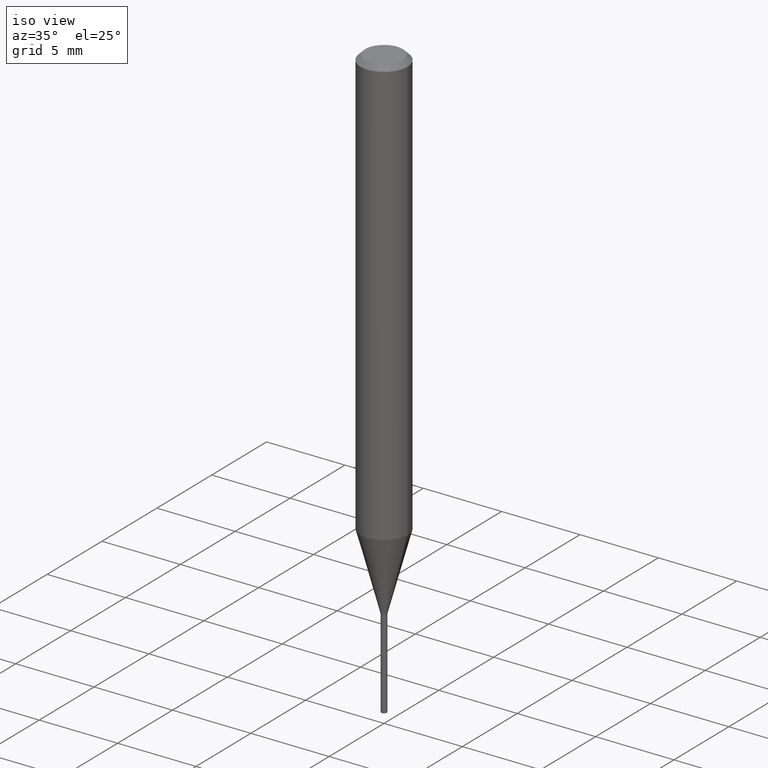
[diagram: clean part render]
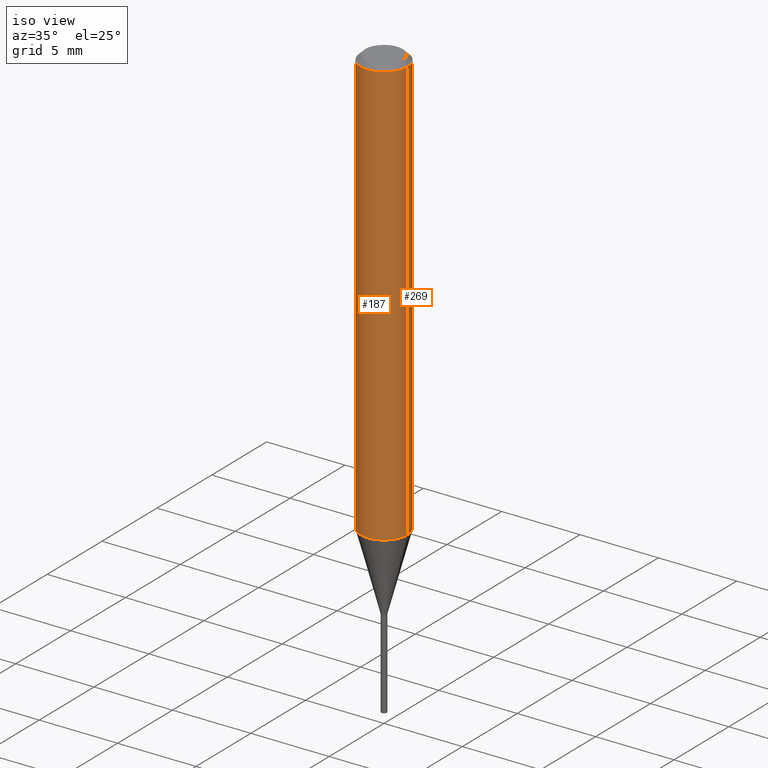
[diagram: same view with one multi-face feature highlighted, each face labeled with its STEP entity id]
A machine part, iso view. The highlighted faces form ONE feature: a constant-radius fillet chain: 2 tangent blend faces with common blend radius 1.4999 mm. The faces share edges in the B-rep.
Their STEP definitions:
[1] entity #187 (Cylinder):
#36 = CIRCLE ( 'NONE', #205, 0.05904999999999999832 ) ;
#45 = ORIENTED_EDGE ( 'NONE', *, *, #321, .F. ) ;
#54 = CARTESIAN_POINT ( 'NONE',  ( -0.05905000000000013710, -3.333674605453837154E-15, -1.074973550385283083 ) ) ;
#55 = ORIENTED_EDGE ( 'NONE', *, *, #144, .T. ) ;
#59 = DIRECTION ( 'NONE',  ( -2.445468806185136597E-29, 3.491481338843145583E-15, 1.000000000000000000 ) ) ;
#66 = EDGE_CURVE ( 'NONE', #312, #297, #173, .T. ) ;
#68 = LINE ( 'NONE', #236, #125 ) ;
#82 = DIRECTION ( 'NONE',  ( 1.000000000000000000, -6.982962677686266711E-15, 4.876176775795936353E-29 ) ) ;
#103 = CARTESIAN_POINT ( 'NONE',  ( 0.05905000000000013710, -4.165594037037551961E-15, -1.074973550385283083 ) ) ;
#125 = VECTOR ( 'NONE', #228, 39.37007874015748143 ) ;
#126 = DIRECTION ( 'NONE',  ( 1.000000000000000000, -6.982962677686264344E-15, 0.000000000000000000 ) ) ;
#136 = CARTESIAN_POINT ( 'NONE',  ( 0.05905000000000006771, -4.123439461173745257E-16, 2.879382386107503723E-30 ) ) ;
#144 = EDGE_CURVE ( 'NONE', #271, #312, #270, .T. ) ;
#162 = FACE_OUTER_BOUND ( 'NONE', #197, .T. ) ;
#173 = LINE ( 'NONE', #136, #223 ) ;
#187 = ADVANCED_FACE ( 'NONE', ( #162 ), #382, .T. ) ;
#197 = EDGE_LOOP ( 'NONE', ( #476, #55, #238, #45 ) ) ;
#204 = CARTESIAN_POINT ( 'NONE',  ( 0.000000000000000000, 0.000000000000000000, 0.000000000000000000 ) ) ;
#205 = AXIS2_PLACEMENT_3D ( 'NONE', #259, #59, #356 ) ;
#207 = DIRECTION ( 'NONE',  ( -2.445468806185136597E-29, 3.491481338843145583E-15, 1.000000000000000000 ) ) ;
#216 = CARTESIAN_POINT ( 'NONE',  ( 0.05904999999999999832, -4.535783407291118600E-16, -0.01181000000000007044 ) ) ;
#223 = VECTOR ( 'NONE', #319, 39.37007874015748143 ) ;
#228 = DIRECTION ( 'NONE',  ( -2.445468806185136877E-29, 3.491481338843145188E-15, 1.000000000000000000 ) ) ;
#236 = CARTESIAN_POINT ( 'NONE',  ( -0.05905000000000006771, 4.195754854663396409E-16, -2.904631170795525045E-30 ) ) ;
#238 = ORIENTED_EDGE ( 'NONE', *, *, #66, .T. ) ;
#245 = VERTEX_POINT ( 'NONE', #292 ) ;
#259 = CARTESIAN_POINT ( 'NONE',  ( 2.888098660104663766E-31, -4.123439461173779647E-17, -0.01181000000000007044 ) ) ;
#270 = CIRCLE ( 'NONE', #478, 0.05905000000000013710 ) ;
#271 = VERTEX_POINT ( 'NONE', #54 ) ;
#275 = DIRECTION ( 'NONE',  ( -2.445468806185136597E-29, 3.491481338843145583E-15, 1.000000000000000000 ) ) ;
#283 = CARTESIAN_POINT ( 'NONE',  ( 2.628814284941295656E-29, -3.753250090920177830E-15, -1.074973550385283083 ) ) ;
#292 = CARTESIAN_POINT ( 'NONE',  ( -0.05904999999999999832, -1.477666757299617300E-15, -0.01181000000000007044 ) ) ;
#297 = VERTEX_POINT ( 'NONE', #216 ) ;
#312 = VERTEX_POINT ( 'NONE', #103 ) ;
#319 = DIRECTION ( 'NONE',  ( -2.445468806185136877E-29, 3.491481338843145188E-15, 1.000000000000000000 ) ) ;
#321 = EDGE_CURVE ( 'NONE', #245, #297, #36, .T. ) ;
#356 = DIRECTION ( 'NONE',  ( 1.000000000000000000, -6.982962677686266711E-15, 0.000000000000000000 ) ) ;
#370 = AXIS2_PLACEMENT_3D ( 'NONE', #204, #207, #82 ) ;
#382 = CYLINDRICAL_SURFACE ( 'NONE', #370, 0.05905000000000006771 ) ;
#427 = EDGE_CURVE ( 'NONE', #271, #245, #68, .T. ) ;
#476 = ORIENTED_EDGE ( 'NONE', *, *, #427, .F. ) ;
#478 = AXIS2_PLACEMENT_3D ( 'NONE', #283, #275, #126 ) ;
[2] entity #269 (Cylinder):
#12 = AXIS2_PLACEMENT_3D ( 'NONE', #101, #399, #145 ) ;
#18 = ORIENTED_EDGE ( 'NONE', *, *, #427, .T. ) ;
#19 = DIRECTION ( 'NONE',  ( 1.000000000000000000, -6.982962677686264344E-15, 0.000000000000000000 ) ) ;
#28 = ORIENTED_EDGE ( 'NONE', *, *, #66, .F. ) ;
#31 = EDGE_CURVE ( 'NONE', #312, #271, #158, .T. ) ;
#49 = CARTESIAN_POINT ( 'NONE',  ( 2.888098660104663766E-31, -4.123439461173779647E-17, -0.01181000000000007044 ) ) ;
#54 = CARTESIAN_POINT ( 'NONE',  ( -0.05905000000000013710, -3.333674605453837154E-15, -1.074973550385283083 ) ) ;
#66 = EDGE_CURVE ( 'NONE', #312, #297, #173, .T. ) ;
#68 = LINE ( 'NONE', #236, #125 ) ;
#76 = ORIENTED_EDGE ( 'NONE', *, *, #31, .T. ) ;
#78 = EDGE_CURVE ( 'NONE', #297, #245, #405, .T. ) ;
#97 = CYLINDRICAL_SURFACE ( 'NONE', #12, 0.05905000000000006771 ) ;
#98 = DIRECTION ( 'NONE',  ( -2.445468806185136597E-29, 3.491481338843145583E-15, 1.000000000000000000 ) ) ;
#101 = CARTESIAN_POINT ( 'NONE',  ( 0.000000000000000000, 0.000000000000000000, 0.000000000000000000 ) ) ;
#103 = CARTESIAN_POINT ( 'NONE',  ( 0.05905000000000013710, -4.165594037037551961E-15, -1.074973550385283083 ) ) ;
#125 = VECTOR ( 'NONE', #228, 39.37007874015748143 ) ;
#136 = CARTESIAN_POINT ( 'NONE',  ( 0.05905000000000006771, -4.123439461173745257E-16, 2.879382386107503723E-30 ) ) ;
#145 = DIRECTION ( 'NONE',  ( 1.000000000000000000, -6.982962677686266711E-15, 4.876176775795936353E-29 ) ) ;
#158 = CIRCLE ( 'NONE', #276, 0.05905000000000013710 ) ;
#170 = ORIENTED_EDGE ( 'NONE', *, *, #78, .F. ) ;
#173 = LINE ( 'NONE', #136, #223 ) ;
#216 = CARTESIAN_POINT ( 'NONE',  ( 0.05904999999999999832, -4.535783407291118600E-16, -0.01181000000000007044 ) ) ;
#223 = VECTOR ( 'NONE', #319, 39.37007874015748143 ) ;
#228 = DIRECTION ( 'NONE',  ( -2.445468806185136877E-29, 3.491481338843145188E-15, 1.000000000000000000 ) ) ;
#236 = CARTESIAN_POINT ( 'NONE',  ( -0.05905000000000006771, 4.195754854663396409E-16, -2.904631170795525045E-30 ) ) ;
#245 = VERTEX_POINT ( 'NONE', #292 ) ;
#246 = DIRECTION ( 'NONE',  ( -2.445468806185136597E-29, 3.491481338843145583E-15, 1.000000000000000000 ) ) ;
#249 = DIRECTION ( 'NONE',  ( 1.000000000000000000, -6.982962677686266711E-15, 0.000000000000000000 ) ) ;
#269 = ADVANCED_FACE ( 'NONE', ( #470 ), #97, .T. ) ;
#271 = VERTEX_POINT ( 'NONE', #54 ) ;
#276 = AXIS2_PLACEMENT_3D ( 'NONE', #362, #98, #19 ) ;
#280 = EDGE_LOOP ( 'NONE', ( #76, #18, #170, #28 ) ) ;
#292 = CARTESIAN_POINT ( 'NONE',  ( -0.05904999999999999832, -1.477666757299617300E-15, -0.01181000000000007044 ) ) ;
#297 = VERTEX_POINT ( 'NONE', #216 ) ;
#312 = VERTEX_POINT ( 'NONE', #103 ) ;
#319 = DIRECTION ( 'NONE',  ( -2.445468806185136877E-29, 3.491481338843145188E-15, 1.000000000000000000 ) ) ;
#347 = AXIS2_PLACEMENT_3D ( 'NONE', #49, #246, #249 ) ;
#362 = CARTESIAN_POINT ( 'NONE',  ( 2.628814284941295656E-29, -3.753250090920177830E-15, -1.074973550385283083 ) ) ;
#399 = DIRECTION ( 'NONE',  ( -2.445468806185136597E-29, 3.491481338843145583E-15, 1.000000000000000000 ) ) ;
#405 = CIRCLE ( 'NONE', #347, 0.05904999999999999832 ) ;
#427 = EDGE_CURVE ( 'NONE', #271, #245, #68, .T. ) ;
#470 = FACE_OUTER_BOUND ( 'NONE', #280, .T. ) ;